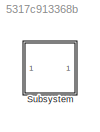
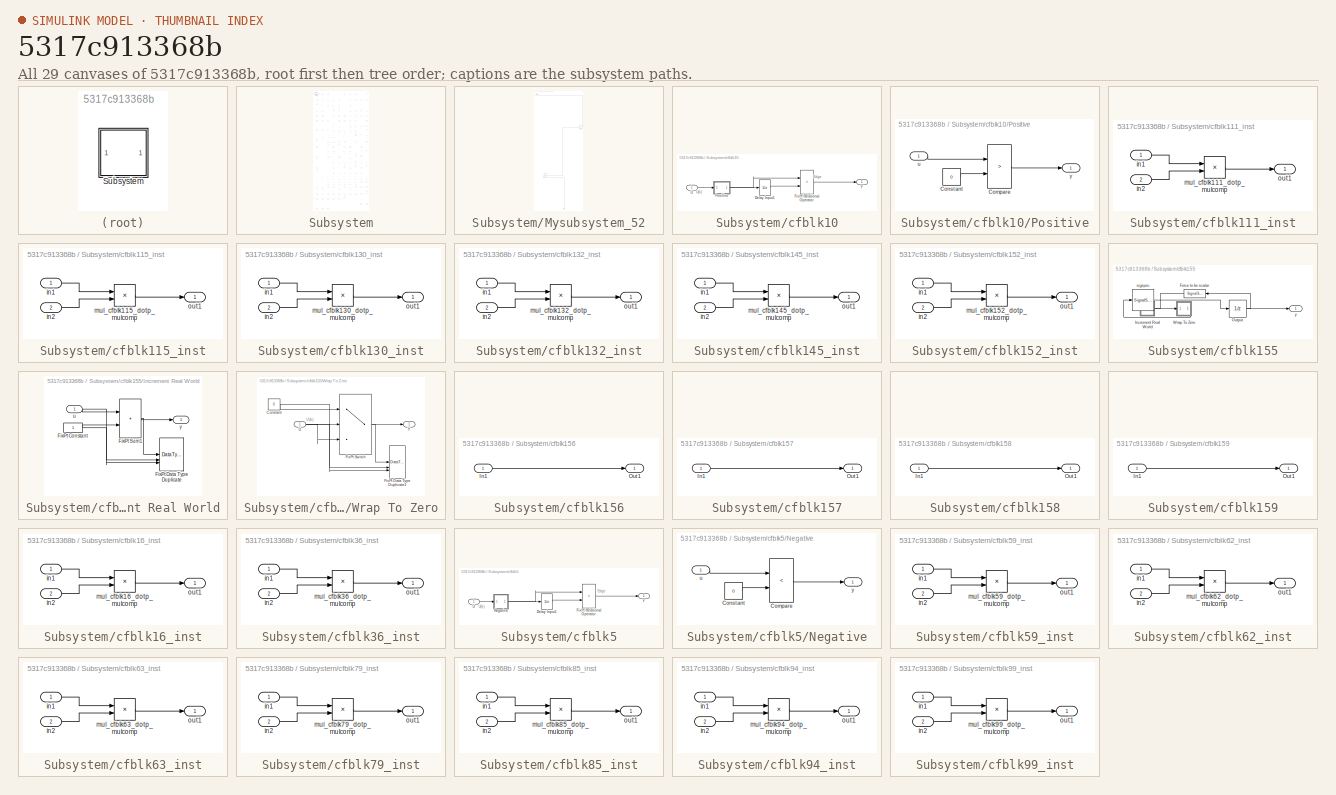
[diagram: thumbnail index - all 29 canvases of the model, root first then tree order]
MODEL slx_5317c913368b
KIND model
CONFIG AbsTol = auto
CONFIG EnableMultiTasking = off
CONFIG FixedStep = auto
CONFIG MaxStep = auto
CONFIG MinStep = auto
CONFIG RelTol = 1e-3
CONFIG SampleTimeConstraint = Unconstrained
CONFIG SolverName = VariableStepAuto
CONFIG StartTime = 0.0
CONFIG StopTime = 10.0
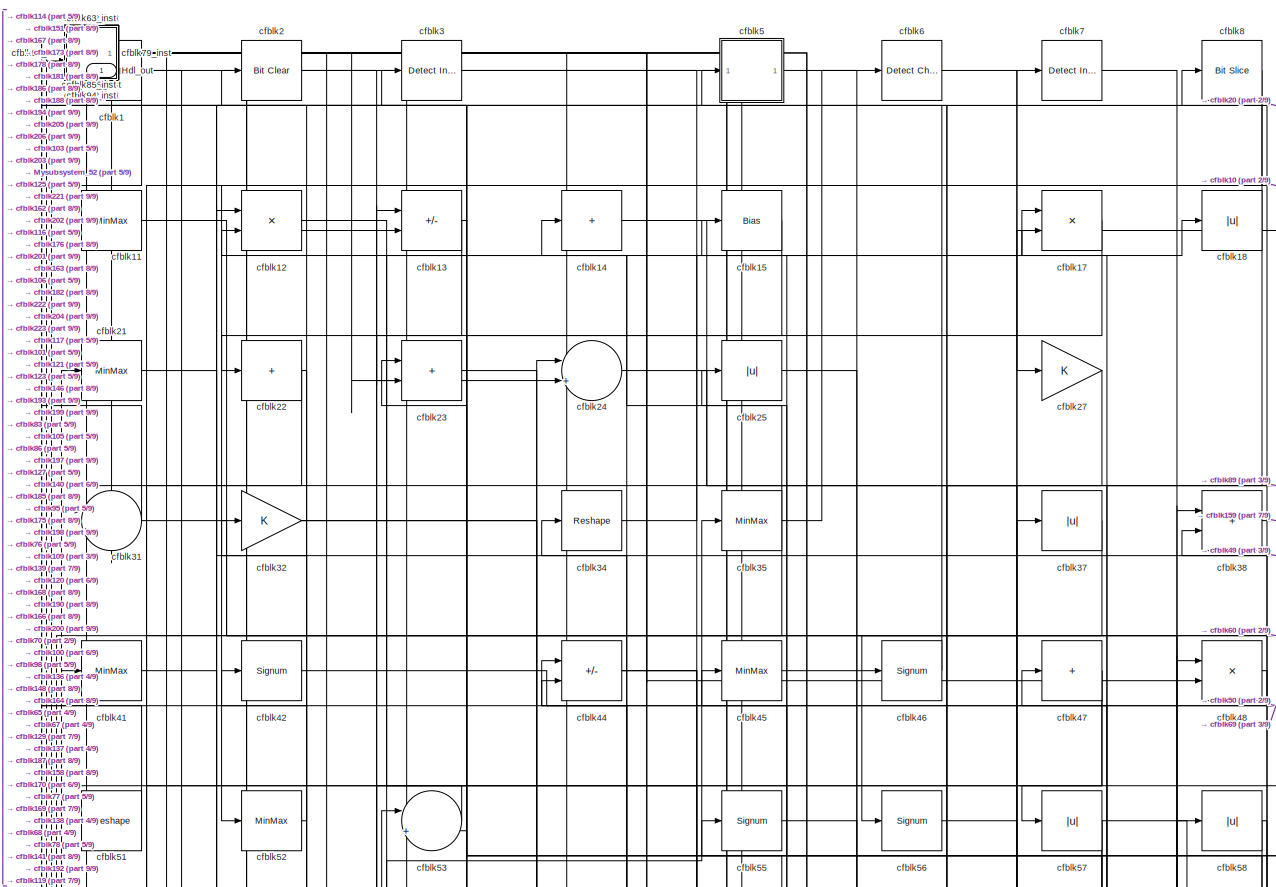
[diagram: Subsystem - part 1/9, full width, top band]
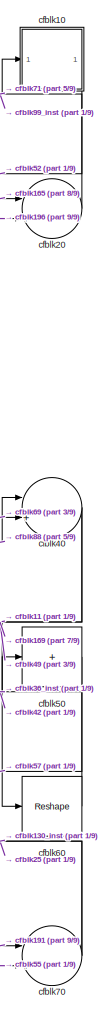
[diagram: Subsystem - part 2/9, top right region]
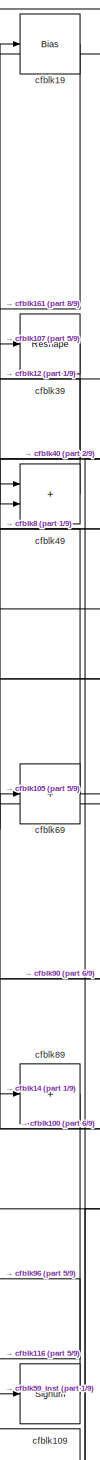
[diagram: Subsystem - part 3/9, top right region]
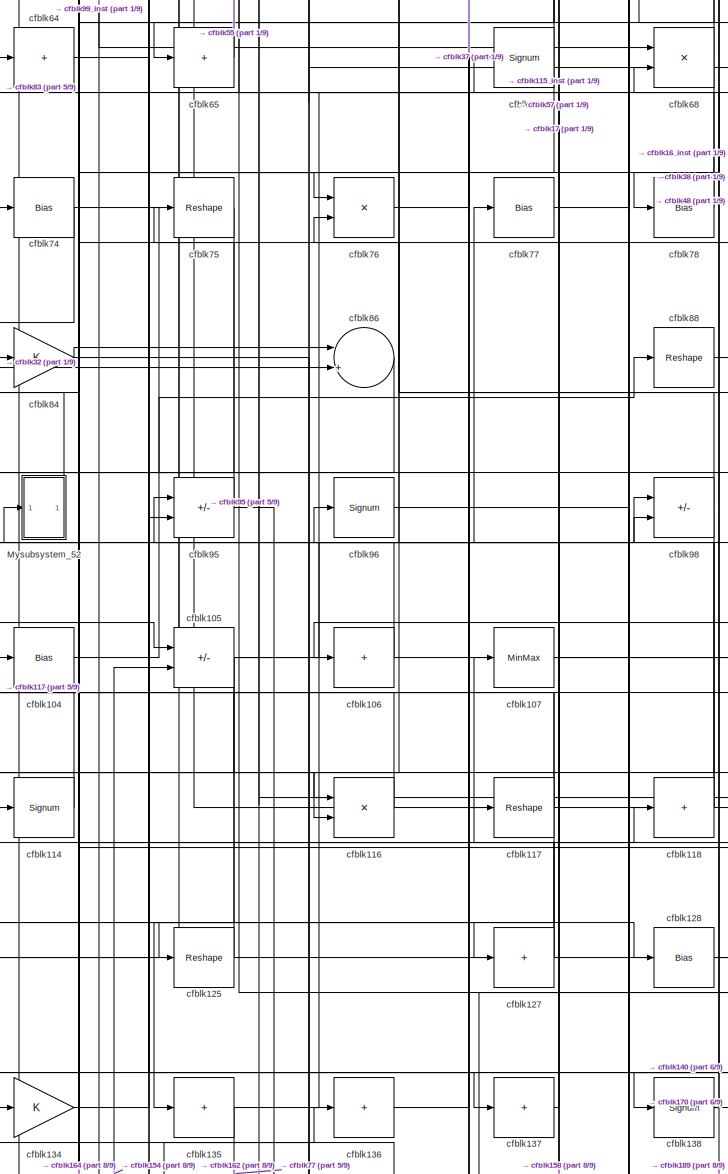
[diagram: Subsystem - part 4/9, central region]
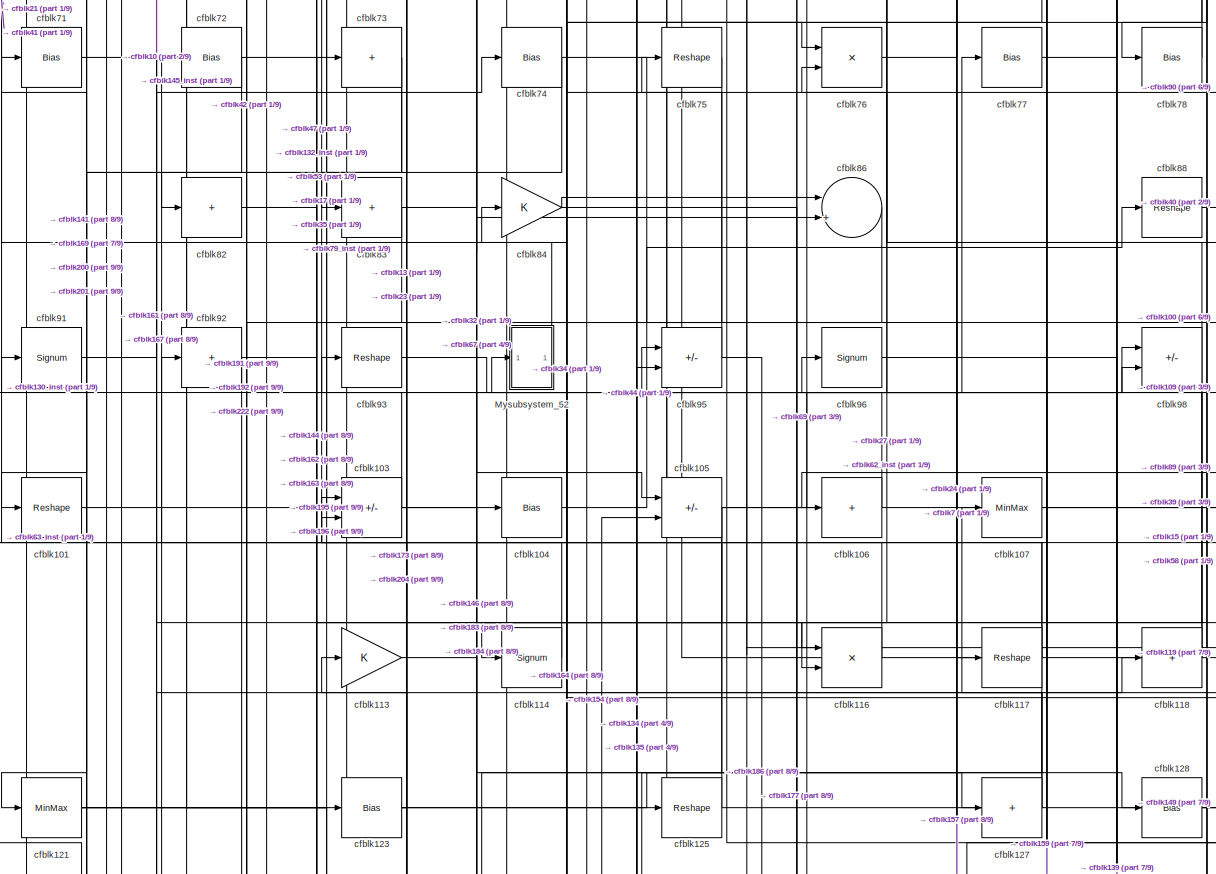
[diagram: Subsystem - part 5/9, full width, middle band]
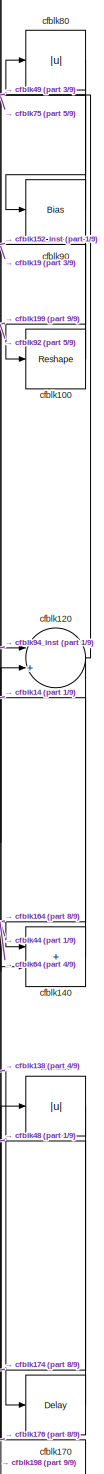
[diagram: Subsystem - part 6/9, middle right region]
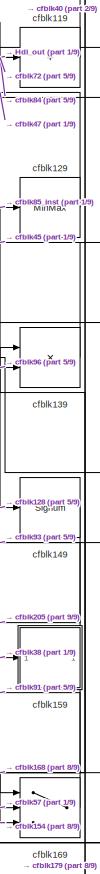
[diagram: Subsystem - part 7/9, middle right region]
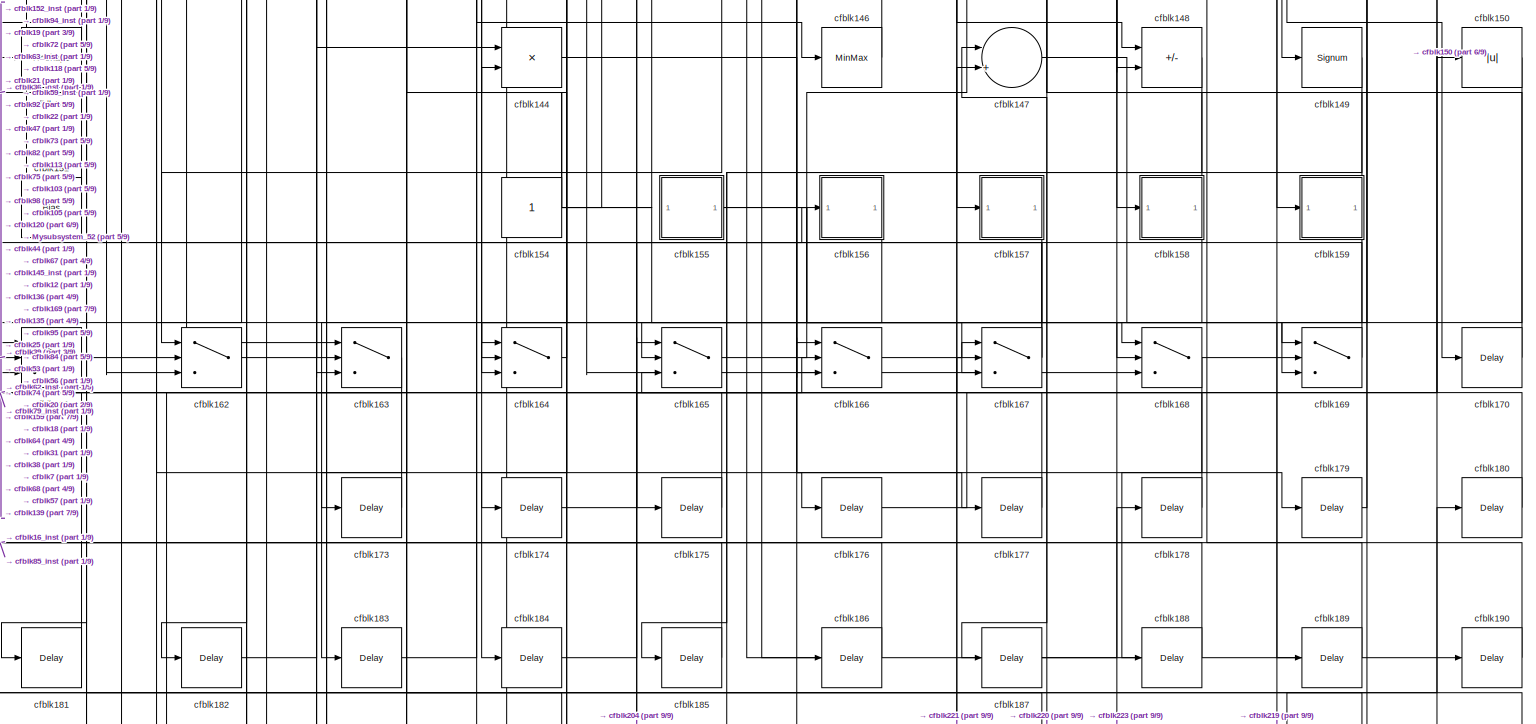
[diagram: Subsystem - part 8/9, full width, bottom band]
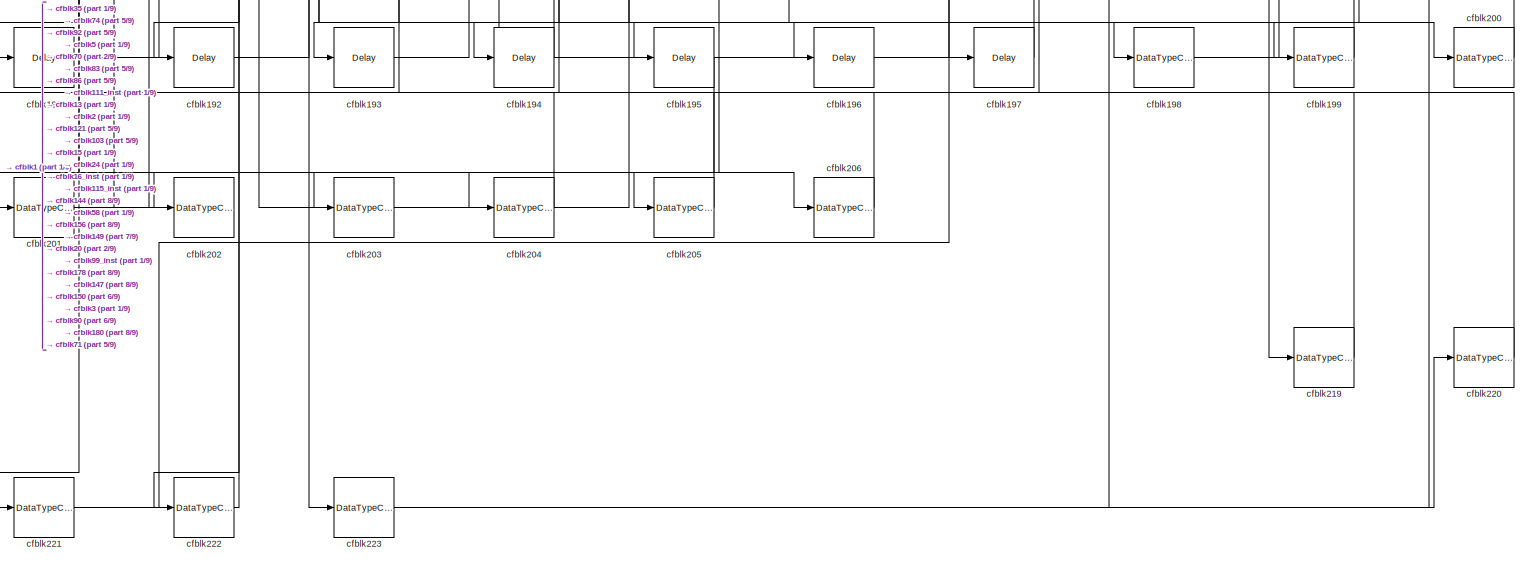
[diagram: Subsystem - part 9/9, full width, bottom band]
BLOCK [SubSystem] Subsystem
BLOCK [Outport] Subsystem/Hdl_out
  OutDataTypeStr = uint8
  SampleTime = 1
BLOCK [SubSystem] Subsystem/Mysubsystem_52
BLOCK [Inport] Subsystem/Mysubsystem_52/In1
  OutDataTypeStr = uint8
  PortDimensions = 1
  SampleTime = 1
BLOCK [Outport] Subsystem/Mysubsystem_52/Out1
  SampleTime = 1
BLOCK [Gain] Subsystem/Mysubsystem_52/cfblk122
BLOCK [Abs] Subsystem/Mysubsystem_52/cfblk66
  SaturateOnIntegerOverflow = off
BLOCK [Reference] Subsystem/cfblk1  REF=simulink/Logic and Bit
Operations/Bit Set
  LibrarySourceBlock = hdlsllib/Logic and Bit\nOperations/Bit Set
  SourceBlock = simulink/Logic and Bit\nOperations/Bit Set
  SourceType = Bit Set
BLOCK [SubSystem] Subsystem/cfblk10
BLOCK [UnitDelay] Subsystem/cfblk10/Delay Input1
  Description = Store in Global RAM
  DisableCoverage = on
  HasFrameUpgradeWarning = on
  InitialCondition = vinit
  SampleTime = -1
BLOCK [RelationalOperator] Subsystem/cfblk10/FixPt Relational Operator
  InputSameDT = off
  Operator = >
  OutDataTypeStr = fixdt(0, 8)
  ZeroCross = off
BLOCK [SubSystem] Subsystem/cfblk10/Positive
BLOCK [RelationalOperator] Subsystem/cfblk10/Positive/Compare
  Operator = >
  OutDataTypeStr = boolean
  ZeroCross = off
BLOCK [Constant] Subsystem/cfblk10/Positive/Constant
  DisableCoverage = on
  OutDataTypeStr = Inherit: Inherit via back propagation
  PreserveConstantTs = on
  SampleTime = -1
  Value = 0
BLOCK [Inport] Subsystem/cfblk10/Positive/u
  OutDataTypeStr = uint8
  SampleTime = 1
BLOCK [Outport] Subsystem/cfblk10/Positive/y
  SampleTime = 1
BLOCK [Inport] Subsystem/cfblk10/U
  OutDataTypeStr = uint8
  SampleTime = 1
BLOCK [Outport] Subsystem/cfblk10/Y
  SampleTime = 1
BLOCK [Reshape] Subsystem/cfblk100
BLOCK [Reshape] Subsystem/cfblk101
BLOCK [Sum] Subsystem/cfblk103
  IconShape = rectangular
  Inputs = +-
  OutDataTypeStr = uint8
BLOCK [Bias] Subsystem/cfblk104
  Bias = 0.0
  SaturateOnIntegerOverflow = off
BLOCK [Sum] Subsystem/cfblk105
  IconShape = rectangular
  Inputs = +-
  OutDataTypeStr = uint8
BLOCK [Sum] Subsystem/cfblk106
  IconShape = rectangular
  Inputs = +
  OutDataTypeStr = uint8
BLOCK [MinMax] Subsystem/cfblk107
  OutDataTypeStr = uint8
BLOCK [Signum] Subsystem/cfblk109
BLOCK [MinMax] Subsystem/cfblk11
  OutDataTypeStr = uint8
BLOCK [SubSystem] Subsystem/cfblk111_inst
BLOCK [Inport] Subsystem/cfblk111_inst/in1
  OutDataTypeStr = uint8
  SampleTime = 1
BLOCK [Inport] Subsystem/cfblk111_inst/in2
  OutDataTypeStr = uint8
  Port = 2
  SampleTime = 1
BLOCK [Product] Subsystem/cfblk111_inst/mul_cfblk111_dotp_mulcomp
  Inputs = **
  OutDataTypeStr = uint8
  SampleTime = 1
BLOCK [Outport] Subsystem/cfblk111_inst/out1
  OutDataTypeStr = uint8
  SampleTime = 1
BLOCK [Gain] Subsystem/cfblk113
  OutDataTypeStr = uint8
BLOCK [Signum] Subsystem/cfblk114
BLOCK [SubSystem] Subsystem/cfblk115_inst
BLOCK [Inport] Subsystem/cfblk115_inst/in1
  OutDataTypeStr = uint8
  SampleTime = 1
BLOCK [Inport] Subsystem/cfblk115_inst/in2
  OutDataTypeStr = uint8
  Port = 2
  SampleTime = 1
BLOCK [Product] Subsystem/cfblk115_inst/mul_cfblk115_dotp_mulcomp
  Inputs = **
  OutDataTypeStr = uint8
  SampleTime = 1
BLOCK [Outport] Subsystem/cfblk115_inst/out1
  OutDataTypeStr = uint8
  SampleTime = 1
BLOCK [Product] Subsystem/cfblk116
  Inputs = */
  OutDataTypeStr = uint8
  RndMeth = Zero
  SaturateOnIntegerOverflow = on
BLOCK [Reshape] Subsystem/cfblk117
BLOCK [Sum] Subsystem/cfblk118
  IconShape = rectangular
  Inputs = +
  OutDataTypeStr = uint8
BLOCK [Sum] Subsystem/cfblk119
  IconShape = rectangular
  Inputs = +
  OutDataTypeStr = uint8
BLOCK [Product] Subsystem/cfblk12
  Inputs = */
  OutDataTypeStr = uint8
  RndMeth = Zero
  SaturateOnIntegerOverflow = on
BLOCK [Sum] Subsystem/cfblk120
  Inputs = |++
  OutDataTypeStr = uint8
BLOCK [MinMax] Subsystem/cfblk121
  OutDataTypeStr = uint8
BLOCK [Bias] Subsystem/cfblk123
  Bias = 0.0
  SaturateOnIntegerOverflow = off
BLOCK [Reshape] Subsystem/cfblk125
BLOCK [Sum] Subsystem/cfblk127
  IconShape = rectangular
  Inputs = +
  OutDataTypeStr = uint8
BLOCK [Bias] Subsystem/cfblk128
  Bias = 0.0
  SaturateOnIntegerOverflow = off
BLOCK [MinMax] Subsystem/cfblk129
  OutDataTypeStr = uint8
BLOCK [Sum] Subsystem/cfblk13
  IconShape = rectangular
  Inputs = +-
  OutDataTypeStr = uint8
BLOCK [SubSystem] Subsystem/cfblk130_inst
BLOCK [Inport] Subsystem/cfblk130_inst/in1
  OutDataTypeStr = uint8
  SampleTime = 1
BLOCK [Inport] Subsystem/cfblk130_inst/in2
  OutDataTypeStr = uint8
  Port = 2
  SampleTime = 1
BLOCK [Product] Subsystem/cfblk130_inst/mul_cfblk130_dotp_mulcomp
  Inputs = **
  OutDataTypeStr = uint8
  SampleTime = 1
BLOCK [Outport] Subsystem/cfblk130_inst/out1
  OutDataTypeStr = uint8
  SampleTime = 1
BLOCK [SubSystem] Subsystem/cfblk132_inst
BLOCK [Inport] Subsystem/cfblk132_inst/in1
  OutDataTypeStr = uint8
  SampleTime = 1
BLOCK [Inport] Subsystem/cfblk132_inst/in2
  OutDataTypeStr = uint8
  Port = 2
  SampleTime = 1
BLOCK [Product] Subsystem/cfblk132_inst/mul_cfblk132_dotp_mulcomp
  Inputs = **
  OutDataTypeStr = uint8
  SampleTime = 1
BLOCK [Outport] Subsystem/cfblk132_inst/out1
  OutDataTypeStr = uint8
  SampleTime = 1
BLOCK [Gain] Subsystem/cfblk134
  OutDataTypeStr = uint8
BLOCK [Sum] Subsystem/cfblk135
  IconShape = rectangular
  Inputs = +
  OutDataTypeStr = uint8
BLOCK [Sum] Subsystem/cfblk136
  IconShape = rectangular
  Inputs = +
  OutDataTypeStr = uint8
BLOCK [Sum] Subsystem/cfblk137
  IconShape = rectangular
  Inputs = +
  OutDataTypeStr = uint8
BLOCK [Signum] Subsystem/cfblk138
BLOCK [Product] Subsystem/cfblk139
  Inputs = */
  OutDataTypeStr = uint8
  RndMeth = Zero
  SaturateOnIntegerOverflow = on
BLOCK [Sum] Subsystem/cfblk14
  IconShape = rectangular
  Inputs = +
  OutDataTypeStr = uint8
BLOCK [Sum] Subsystem/cfblk140
  IconShape = rectangular
  OutDataTypeStr = uint8
BLOCK [Reshape] Subsystem/cfblk141
BLOCK [Product] Subsystem/cfblk144
  Inputs = */
  OutDataTypeStr = uint8
  RndMeth = Zero
  SaturateOnIntegerOverflow = on
BLOCK [SubSystem] Subsystem/cfblk145_inst
BLOCK [Inport] Subsystem/cfblk145_inst/in1
  OutDataTypeStr = uint8
  SampleTime = 1
BLOCK [Inport] Subsystem/cfblk145_inst/in2
  OutDataTypeStr = uint8
  Port = 2
  SampleTime = 1
BLOCK [Product] Subsystem/cfblk145_inst/mul_cfblk145_dotp_mulcomp
  Inputs = **
  OutDataTypeStr = uint8
  SampleTime = 1
BLOCK [Outport] Subsystem/cfblk145_inst/out1
  OutDataTypeStr = uint8
  SampleTime = 1
BLOCK [MinMax] Subsystem/cfblk146
  OutDataTypeStr = uint8
BLOCK [Sum] Subsystem/cfblk147
  Inputs = |++
  OutDataTypeStr = uint8
BLOCK [Sum] Subsystem/cfblk148
  IconShape = rectangular
  Inputs = +-
  OutDataTypeStr = uint8
BLOCK [Signum] Subsystem/cfblk149
BLOCK [Bias] Subsystem/cfblk15
  Bias = 0.0
  SaturateOnIntegerOverflow = off
BLOCK [Abs] Subsystem/cfblk150
  OutDataTypeStr = uint8
  SaturateOnIntegerOverflow = off
BLOCK [Bias] Subsystem/cfblk151
  Bias = 0.0
  SaturateOnIntegerOverflow = off
BLOCK [SubSystem] Subsystem/cfblk152_inst
BLOCK [Inport] Subsystem/cfblk152_inst/in1
  OutDataTypeStr = uint8
  SampleTime = 1
BLOCK [Inport] Subsystem/cfblk152_inst/in2
  OutDataTypeStr = uint8
  Port = 2
  SampleTime = 1
BLOCK [Product] Subsystem/cfblk152_inst/mul_cfblk152_dotp_mulcomp
  Inputs = **
  OutDataTypeStr = uint8
  SampleTime = 1
BLOCK [Outport] Subsystem/cfblk152_inst/out1
  OutDataTypeStr = uint8
  SampleTime = 1
BLOCK [Constant] Subsystem/cfblk154
  OutDataTypeStr = uint8
  SampleTime = -1
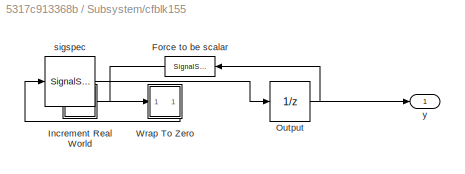
BLOCK [SubSystem] Subsystem/cfblk155
BLOCK [SignalSpecification] Subsystem/cfblk155/Force to be scalar
  Dimensions = 1
  DisableCoverage = on
BLOCK [SubSystem] Subsystem/cfblk155/Increment Real World
BLOCK [Constant] Subsystem/cfblk155/Increment Real World/FixPt Constant
  DisableCoverage = on
  OutDataTypeStr = Inherit: Inherit via back propagation
  SampleTime = -1
BLOCK [DataTypeDuplicate] Subsystem/cfblk155/Increment Real World/FixPt Data Type Duplicate
  DisableCoverage = on
  NumInputPorts = 3
BLOCK [Sum] Subsystem/cfblk155/Increment Real World/FixPt Sum1
  IconShape = rectangular
  InputSameDT = on
  LockScale = on
  OutDataTypeStr = Inherit: Inherit via back propagation
BLOCK [Inport] Subsystem/cfblk155/Increment Real World/u
  OutDataTypeStr = uint16
  SampleTime = 1
BLOCK [Outport] Subsystem/cfblk155/Increment Real World/y
  SampleTime = 1
BLOCK [UnitDelay] Subsystem/cfblk155/Output
  HasFrameUpgradeWarning = on
  InitialCondition = 0.0
  SampleTime = tsamp
BLOCK [SubSystem] Subsystem/cfblk155/Wrap To Zero
BLOCK [Constant] Subsystem/cfblk155/Wrap To Zero/Constant
  DisableCoverage = on
  OutDataTypeStr = Inherit: Inherit via back propagation
  SampleTime = -1
  Value = 0
BLOCK [DataTypeDuplicate] Subsystem/cfblk155/Wrap To Zero/FixPt Data Type Duplicate1
  DisableCoverage = on
  NumInputPorts = 3
BLOCK [Switch] Subsystem/cfblk155/Wrap To Zero/FixPt Switch
  Criteria = u2 > Threshold
  InputSameDT = off
  OutDataTypeStr = Inherit: Inherit via back propagation
  SaturateOnIntegerOverflow = off
  Threshold = Threshold
  ZeroCross = off
BLOCK [Inport] Subsystem/cfblk155/Wrap To Zero/U
  OutDataTypeStr = uint16
  SampleTime = 1
BLOCK [Outport] Subsystem/cfblk155/Wrap To Zero/Y
  SampleTime = 1
BLOCK [SignalSpecification] Subsystem/cfblk155/sigspec
  Dimensions = 1
  OutDataTypeStr = uint16
BLOCK [Outport] Subsystem/cfblk155/y
  SampleTime = 1
BLOCK [SubSystem] Subsystem/cfblk156
BLOCK [Inport] Subsystem/cfblk156/In1
  OutDataTypeStr = uint8
  PortDimensions = 1
  SampleTime = 1
BLOCK [Outport] Subsystem/cfblk156/Out1
  SampleTime = 1
BLOCK [SubSystem] Subsystem/cfblk157
BLOCK [Inport] Subsystem/cfblk157/In1
  OutDataTypeStr = uint8
  PortDimensions = 1
  SampleTime = 1
BLOCK [Outport] Subsystem/cfblk157/Out1
  SampleTime = 1
BLOCK [SubSystem] Subsystem/cfblk158
BLOCK [Inport] Subsystem/cfblk158/In1
  OutDataTypeStr = uint8
  PortDimensions = 1
  SampleTime = 1
BLOCK [Outport] Subsystem/cfblk158/Out1
  SampleTime = 1
BLOCK [SubSystem] Subsystem/cfblk159
BLOCK [Inport] Subsystem/cfblk159/In1
  OutDataTypeStr = uint8
  PortDimensions = 1
  SampleTime = 1
BLOCK [Outport] Subsystem/cfblk159/Out1
  SampleTime = 1
BLOCK [Switch] Subsystem/cfblk161
  InputSameDT = off
  OutDataTypeStr = uint8
  SaturateOnIntegerOverflow = off
BLOCK [Switch] Subsystem/cfblk162
  InputSameDT = off
  OutDataTypeStr = uint8
  SaturateOnIntegerOverflow = off
BLOCK [Switch] Subsystem/cfblk163
  InputSameDT = off
  OutDataTypeStr = uint8
  SaturateOnIntegerOverflow = off
BLOCK [Switch] Subsystem/cfblk164
  InputSameDT = off
  OutDataTypeStr = uint8
  SaturateOnIntegerOverflow = off
BLOCK [Switch] Subsystem/cfblk165
  InputSameDT = off
  OutDataTypeStr = uint8
  SaturateOnIntegerOverflow = off
BLOCK [Switch] Subsystem/cfblk166
  InputSameDT = off
  OutDataTypeStr = uint8
  SaturateOnIntegerOverflow = off
BLOCK [Switch] Subsystem/cfblk167
  InputSameDT = off
  OutDataTypeStr = uint8
  SaturateOnIntegerOverflow = off
BLOCK [Switch] Subsystem/cfblk168
  InputSameDT = off
  OutDataTypeStr = uint8
  SaturateOnIntegerOverflow = off
BLOCK [Switch] Subsystem/cfblk169
  InputSameDT = off
  OutDataTypeStr = uint8
  SaturateOnIntegerOverflow = off
BLOCK [SubSystem] Subsystem/cfblk16_inst
BLOCK [Inport] Subsystem/cfblk16_inst/in1
  OutDataTypeStr = uint8
  SampleTime = 1
BLOCK [Inport] Subsystem/cfblk16_inst/in2
  OutDataTypeStr = uint8
  Port = 2
  SampleTime = 1
BLOCK [Product] Subsystem/cfblk16_inst/mul_cfblk16_dotp_mulcomp
  Inputs = **
  OutDataTypeStr = uint8
  SampleTime = 1
BLOCK [Outport] Subsystem/cfblk16_inst/out1
  OutDataTypeStr = uint8
  SampleTime = 1
BLOCK [Product] Subsystem/cfblk17
  Inputs = */
  OutDataTypeStr = uint8
  RndMeth = Zero
  SaturateOnIntegerOverflow = on
BLOCK [Delay] Subsystem/cfblk170
  InputPortMap = u0
  SampleTime = 1
BLOCK [Delay] Subsystem/cfblk173
  InputPortMap = u0
  SampleTime = 1
BLOCK [Delay] Subsystem/cfblk174
  InputPortMap = u0
  SampleTime = 1
BLOCK [Delay] Subsystem/cfblk175
  InputPortMap = u0
  SampleTime = 1
BLOCK [Delay] Subsystem/cfblk176
  InputPortMap = u0
  SampleTime = 1
BLOCK [Delay] Subsystem/cfblk177
  InputPortMap = u0
  SampleTime = 1
BLOCK [Delay] Subsystem/cfblk178
  InputPortMap = u0
  SampleTime = 1
BLOCK [Delay] Subsystem/cfblk179
  InputPortMap = u0
  SampleTime = 1
BLOCK [Abs] Subsystem/cfblk18
  OutDataTypeStr = uint8
  SaturateOnIntegerOverflow = off
BLOCK [Delay] Subsystem/cfblk180
  InputPortMap = u0
  SampleTime = 1
BLOCK [Delay] Subsystem/cfblk181
  InputPortMap = u0
  SampleTime = 1
BLOCK [Delay] Subsystem/cfblk182
  InputPortMap = u0
  SampleTime = 1
BLOCK [Delay] Subsystem/cfblk183
  InputPortMap = u0
  SampleTime = 1
BLOCK [Delay] Subsystem/cfblk184
  InputPortMap = u0
  SampleTime = 1
BLOCK [Delay] Subsystem/cfblk185
  InputPortMap = u0
  SampleTime = 1
BLOCK [Delay] Subsystem/cfblk186
  InputPortMap = u0
  SampleTime = 1
BLOCK [Delay] Subsystem/cfblk187
  InputPortMap = u0
  SampleTime = 1
BLOCK [Delay] Subsystem/cfblk188
  InputPortMap = u0
  SampleTime = 1
BLOCK [Delay] Subsystem/cfblk189
  InputPortMap = u0
  SampleTime = 1
BLOCK [Bias] Subsystem/cfblk19
  Bias = 0.0
  SaturateOnIntegerOverflow = off
BLOCK [Delay] Subsystem/cfblk190
  InputPortMap = u0
  SampleTime = 1
BLOCK [Delay] Subsystem/cfblk191
  InputPortMap = u0
  SampleTime = 1
BLOCK [Delay] Subsystem/cfblk192
  InputPortMap = u0
  SampleTime = 1
BLOCK [Delay] Subsystem/cfblk193
  InputPortMap = u0
  SampleTime = 1
BLOCK [Delay] Subsystem/cfblk194
  InputPortMap = u0
  SampleTime = 1
BLOCK [Delay] Subsystem/cfblk195
  InputPortMap = u0
  SampleTime = 1
BLOCK [Delay] Subsystem/cfblk196
  InputPortMap = u0
  SampleTime = 1
BLOCK [Delay] Subsystem/cfblk197
  InputPortMap = u0
  SampleTime = 1
BLOCK [DataTypeConversion] Subsystem/cfblk198
  OutDataTypeStr = uint8
  RndMeth = Floor
  SaturateOnIntegerOverflow = off
BLOCK [DataTypeConversion] Subsystem/cfblk199
  OutDataTypeStr = uint8
  RndMeth = Floor
  SaturateOnIntegerOverflow = off
BLOCK [Reference] Subsystem/cfblk2  REF=simulink/Logic and Bit
Operations/Bit Clear
  LibrarySourceBlock = hdlsllib/Logic and Bit\nOperations/Bit Clear
  SourceBlock = simulink/Logic and Bit\nOperations/Bit Clear
  SourceType = Bit Clear
BLOCK [Sum] Subsystem/cfblk20
  Inputs = |++
  OutDataTypeStr = uint8
BLOCK [DataTypeConversion] Subsystem/cfblk200
  OutDataTypeStr = uint8
  RndMeth = Floor
  SaturateOnIntegerOverflow = off
BLOCK [DataTypeConversion] Subsystem/cfblk201
  OutDataTypeStr = uint8
  RndMeth = Floor
  SaturateOnIntegerOverflow = off
BLOCK [DataTypeConversion] Subsystem/cfblk202
  OutDataTypeStr = uint8
  RndMeth = Floor
  SaturateOnIntegerOverflow = off
BLOCK [DataTypeConversion] Subsystem/cfblk203
  OutDataTypeStr = uint8
  RndMeth = Floor
  SaturateOnIntegerOverflow = off
BLOCK [DataTypeConversion] Subsystem/cfblk204
  OutDataTypeStr = uint8
  RndMeth = Floor
  SaturateOnIntegerOverflow = off
BLOCK [DataTypeConversion] Subsystem/cfblk205
  OutDataTypeStr = uint8
  RndMeth = Floor
  SaturateOnIntegerOverflow = off
BLOCK [DataTypeConversion] Subsystem/cfblk206
  OutDataTypeStr = uint8
  RndMeth = Floor
  SaturateOnIntegerOverflow = off
BLOCK [MinMax] Subsystem/cfblk21
  OutDataTypeStr = uint8
BLOCK [DataTypeConversion] Subsystem/cfblk219
  OutDataTypeStr = uint8
  RndMeth = Floor
  SaturateOnIntegerOverflow = off
BLOCK [Sum] Subsystem/cfblk22
  IconShape = rectangular
  Inputs = +
  OutDataTypeStr = uint8
BLOCK [DataTypeConversion] Subsystem/cfblk220
  OutDataTypeStr = uint8
  RndMeth = Floor
  SaturateOnIntegerOverflow = off
BLOCK [DataTypeConversion] Subsystem/cfblk221
  OutDataTypeStr = uint8
  RndMeth = Floor
  SaturateOnIntegerOverflow = off
BLOCK [DataTypeConversion] Subsystem/cfblk222
  OutDataTypeStr = uint8
  RndMeth = Floor
  SaturateOnIntegerOverflow = off
BLOCK [DataTypeConversion] Subsystem/cfblk223
  OutDataTypeStr = uint8
  RndMeth = Floor
  SaturateOnIntegerOverflow = off
BLOCK [Sum] Subsystem/cfblk23
  IconShape = rectangular
  OutDataTypeStr = uint8
BLOCK [Sum] Subsystem/cfblk24
  Inputs = |++
  OutDataTypeStr = uint8
BLOCK [Abs] Subsystem/cfblk25
  OutDataTypeStr = uint8
  SaturateOnIntegerOverflow = off
BLOCK [Gain] Subsystem/cfblk27
  OutDataTypeStr = uint8
BLOCK [Reference] Subsystem/cfblk3  REF=simulink/Logic and Bit
Operations/Detect
Increase
  LibrarySourceBlock = hdlsllib/Logic and Bit\nOperations/Detect\nIncrease
  SourceBlock = simulink/Logic and Bit\nOperations/Detect\nIncrease
  SourceType = Detect Increase
BLOCK [Sum] Subsystem/cfblk31
  Inputs = |++
  OutDataTypeStr = uint8
BLOCK [Gain] Subsystem/cfblk32
  OutDataTypeStr = uint8
BLOCK [Reshape] Subsystem/cfblk34
BLOCK [MinMax] Subsystem/cfblk35
  OutDataTypeStr = uint8
BLOCK [SubSystem] Subsystem/cfblk36_inst
BLOCK [Inport] Subsystem/cfblk36_inst/in1
  OutDataTypeStr = uint8
  SampleTime = 1
BLOCK [Inport] Subsystem/cfblk36_inst/in2
  OutDataTypeStr = uint8
  Port = 2
  SampleTime = 1
BLOCK [Product] Subsystem/cfblk36_inst/mul_cfblk36_dotp_mulcomp
  Inputs = **
  OutDataTypeStr = uint8
  SampleTime = 1
BLOCK [Outport] Subsystem/cfblk36_inst/out1
  OutDataTypeStr = uint8
  SampleTime = 1
BLOCK [Abs] Subsystem/cfblk37
  OutDataTypeStr = uint8
  SaturateOnIntegerOverflow = off
BLOCK [Sum] Subsystem/cfblk38
  IconShape = rectangular
  OutDataTypeStr = uint8
BLOCK [Reshape] Subsystem/cfblk39
BLOCK [Sum] Subsystem/cfblk40
  Inputs = |++
  OutDataTypeStr = uint8
BLOCK [MinMax] Subsystem/cfblk41
  OutDataTypeStr = uint8
BLOCK [Signum] Subsystem/cfblk42
BLOCK [Sum] Subsystem/cfblk44
  IconShape = rectangular
  Inputs = +-
  OutDataTypeStr = uint8
BLOCK [MinMax] Subsystem/cfblk45
  OutDataTypeStr = uint8
BLOCK [Signum] Subsystem/cfblk46
BLOCK [Sum] Subsystem/cfblk47
  IconShape = rectangular
  Inputs = +
  OutDataTypeStr = uint8
BLOCK [Product] Subsystem/cfblk48
  Inputs = */
  OutDataTypeStr = uint8
  RndMeth = Zero
  SaturateOnIntegerOverflow = on
BLOCK [Sum] Subsystem/cfblk49
  IconShape = rectangular
  OutDataTypeStr = uint8
BLOCK [SubSystem] Subsystem/cfblk5
BLOCK [UnitDelay] Subsystem/cfblk5/Delay Input1
  Description = Store in Global RAM
  DisableCoverage = on
  HasFrameUpgradeWarning = on
  InitialCondition = vinit
  SampleTime = -1
BLOCK [RelationalOperator] Subsystem/cfblk5/FixPt Relational Operator
  InputSameDT = off
  Operator = >
  OutDataTypeStr = fixdt(0, 8)
  ZeroCross = off
BLOCK [SubSystem] Subsystem/cfblk5/Negative
BLOCK [RelationalOperator] Subsystem/cfblk5/Negative/Compare
  Operator = <
  OutDataTypeStr = boolean
  ZeroCross = off
BLOCK [Constant] Subsystem/cfblk5/Negative/Constant
  DisableCoverage = on
  OutDataTypeStr = Inherit: Inherit via back propagation
  PreserveConstantTs = on
  SampleTime = -1
  Value = 0
BLOCK [Inport] Subsystem/cfblk5/Negative/u
  OutDataTypeStr = uint8
  SampleTime = 1
BLOCK [Outport] Subsystem/cfblk5/Negative/y
  SampleTime = 1
BLOCK [Inport] Subsystem/cfblk5/U
  OutDataTypeStr = uint8
  SampleTime = 1
BLOCK [Outport] Subsystem/cfblk5/Y
  SampleTime = 1
BLOCK [Sum] Subsystem/cfblk50
  IconShape = rectangular
  Inputs = +
  OutDataTypeStr = uint8
BLOCK [Reshape] Subsystem/cfblk51
BLOCK [MinMax] Subsystem/cfblk52
  OutDataTypeStr = uint8
BLOCK [Sum] Subsystem/cfblk53
  Inputs = |++
  OutDataTypeStr = uint8
BLOCK [Signum] Subsystem/cfblk55
BLOCK [Signum] Subsystem/cfblk56
BLOCK [Abs] Subsystem/cfblk57
  OutDataTypeStr = uint8
  SaturateOnIntegerOverflow = off
BLOCK [Abs] Subsystem/cfblk58
  OutDataTypeStr = uint8
  SaturateOnIntegerOverflow = off
BLOCK [SubSystem] Subsystem/cfblk59_inst
BLOCK [Inport] Subsystem/cfblk59_inst/in1
  OutDataTypeStr = uint8
  SampleTime = 1
BLOCK [Inport] Subsystem/cfblk59_inst/in2
  OutDataTypeStr = uint8
  Port = 2
  SampleTime = 1
BLOCK [Product] Subsystem/cfblk59_inst/mul_cfblk59_dotp_mulcomp
  Inputs = **
  OutDataTypeStr = uint8
  SampleTime = 1
BLOCK [Outport] Subsystem/cfblk59_inst/out1
  OutDataTypeStr = uint8
  SampleTime = 1
BLOCK [Reference] Subsystem/cfblk6  REF=simulink/Logic and Bit
Operations/Detect
Change
  LibrarySourceBlock = hdlsllib/Logic and Bit\nOperations/Detect\nChange
  SourceBlock = simulink/Logic and Bit\nOperations/Detect\nChange
  SourceType = Detect Change
BLOCK [Reshape] Subsystem/cfblk60
BLOCK [SubSystem] Subsystem/cfblk62_inst
BLOCK [Inport] Subsystem/cfblk62_inst/in1
  OutDataTypeStr = uint8
  SampleTime = 1
BLOCK [Inport] Subsystem/cfblk62_inst/in2
  OutDataTypeStr = uint8
  Port = 2
  SampleTime = 1
BLOCK [Product] Subsystem/cfblk62_inst/mul_cfblk62_dotp_mulcomp
  Inputs = **
  OutDataTypeStr = uint8
  SampleTime = 1
BLOCK [Outport] Subsystem/cfblk62_inst/out1
  OutDataTypeStr = uint8
  SampleTime = 1
BLOCK [SubSystem] Subsystem/cfblk63_inst
BLOCK [Inport] Subsystem/cfblk63_inst/in1
  OutDataTypeStr = uint8
  SampleTime = 1
BLOCK [Inport] Subsystem/cfblk63_inst/in2
  OutDataTypeStr = uint8
  Port = 2
  SampleTime = 1
BLOCK [Product] Subsystem/cfblk63_inst/mul_cfblk63_dotp_mulcomp
  Inputs = **
  OutDataTypeStr = uint8
  SampleTime = 1
BLOCK [Outport] Subsystem/cfblk63_inst/out1
  OutDataTypeStr = uint8
  SampleTime = 1
BLOCK [Sum] Subsystem/cfblk64
  IconShape = rectangular
  Inputs = +
  OutDataTypeStr = uint8
BLOCK [Sum] Subsystem/cfblk65
  IconShape = rectangular
  Inputs = +
  OutDataTypeStr = uint8
BLOCK [Signum] Subsystem/cfblk67
BLOCK [Product] Subsystem/cfblk68
  Inputs = */
  OutDataTypeStr = uint8
  RndMeth = Zero
  SaturateOnIntegerOverflow = on
BLOCK [Sum] Subsystem/cfblk69
  IconShape = rectangular
  Inputs = +
  OutDataTypeStr = uint8
BLOCK [Reference] Subsystem/cfblk7  REF=simulink/Logic and Bit
Operations/Detect
Increase
  LibrarySourceBlock = hdlsllib/Logic and Bit\nOperations/Detect\nIncrease
  SourceBlock = simulink/Logic and Bit\nOperations/Detect\nIncrease
  SourceType = Detect Increase
BLOCK [Sum] Subsystem/cfblk70
  Inputs = |++
  OutDataTypeStr = uint8
BLOCK [Bias] Subsystem/cfblk71
  Bias = 0.0
  SaturateOnIntegerOverflow = off
BLOCK [Bias] Subsystem/cfblk72
  Bias = 0.0
  SaturateOnIntegerOverflow = off
BLOCK [Sum] Subsystem/cfblk73
  IconShape = rectangular
  Inputs = +
  OutDataTypeStr = uint8
BLOCK [Bias] Subsystem/cfblk74
  Bias = 0.0
  SaturateOnIntegerOverflow = off
BLOCK [Reshape] Subsystem/cfblk75
BLOCK [Product] Subsystem/cfblk76
  Inputs = */
  OutDataTypeStr = uint8
  RndMeth = Zero
  SaturateOnIntegerOverflow = on
BLOCK [Bias] Subsystem/cfblk77
  Bias = 0.0
  SaturateOnIntegerOverflow = off
BLOCK [Bias] Subsystem/cfblk78
  Bias = 0.0
  SaturateOnIntegerOverflow = off
BLOCK [SubSystem] Subsystem/cfblk79_inst
BLOCK [Inport] Subsystem/cfblk79_inst/in1
  OutDataTypeStr = uint8
  SampleTime = 1
BLOCK [Inport] Subsystem/cfblk79_inst/in2
  OutDataTypeStr = uint8
  Port = 2
  SampleTime = 1
BLOCK [Product] Subsystem/cfblk79_inst/mul_cfblk79_dotp_mulcomp
  Inputs = **
  OutDataTypeStr = uint8
  SampleTime = 1
BLOCK [Outport] Subsystem/cfblk79_inst/out1
  OutDataTypeStr = uint8
  SampleTime = 1
BLOCK [Reference] Subsystem/cfblk8  REF=hdlsllib/Logic and Bit
Operations/Bit Slice
  SourceBlock = hdlsllib/Logic and Bit\nOperations/Bit Slice
  SourceType = Bit Slice
BLOCK [Abs] Subsystem/cfblk80
  OutDataTypeStr = uint8
  SaturateOnIntegerOverflow = off
BLOCK [Sum] Subsystem/cfblk82
  IconShape = rectangular
  Inputs = +
  OutDataTypeStr = uint8
BLOCK [Sum] Subsystem/cfblk83
  IconShape = rectangular
  Inputs = +
  OutDataTypeStr = uint8
BLOCK [Gain] Subsystem/cfblk84
  OutDataTypeStr = uint8
BLOCK [SubSystem] Subsystem/cfblk85_inst
BLOCK [Inport] Subsystem/cfblk85_inst/in1
  OutDataTypeStr = uint8
  SampleTime = 1
BLOCK [Inport] Subsystem/cfblk85_inst/in2
  OutDataTypeStr = uint8
  Port = 2
  SampleTime = 1
BLOCK [Product] Subsystem/cfblk85_inst/mul_cfblk85_dotp_mulcomp
  Inputs = **
  OutDataTypeStr = uint8
  SampleTime = 1
BLOCK [Outport] Subsystem/cfblk85_inst/out1
  OutDataTypeStr = uint8
  SampleTime = 1
BLOCK [Sum] Subsystem/cfblk86
  Inputs = |++
  OutDataTypeStr = uint8
BLOCK [Reshape] Subsystem/cfblk88
BLOCK [Sum] Subsystem/cfblk89
  IconShape = rectangular
  Inputs = +
  OutDataTypeStr = uint8
BLOCK [Bias] Subsystem/cfblk90
  Bias = 0.0
  SaturateOnIntegerOverflow = off
BLOCK [Signum] Subsystem/cfblk91
BLOCK [Sum] Subsystem/cfblk92
  IconShape = rectangular
  Inputs = +
  OutDataTypeStr = uint8
BLOCK [Reshape] Subsystem/cfblk93
BLOCK [SubSystem] Subsystem/cfblk94_inst
BLOCK [Inport] Subsystem/cfblk94_inst/in1
  OutDataTypeStr = uint8
  SampleTime = 1
BLOCK [Inport] Subsystem/cfblk94_inst/in2
  OutDataTypeStr = uint8
  Port = 2
  SampleTime = 1
BLOCK [Product] Subsystem/cfblk94_inst/mul_cfblk94_dotp_mulcomp
  Inputs = **
  OutDataTypeStr = uint8
  SampleTime = 1
BLOCK [Outport] Subsystem/cfblk94_inst/out1
  OutDataTypeStr = uint8
  SampleTime = 1
BLOCK [Sum] Subsystem/cfblk95
  IconShape = rectangular
  Inputs = +-
  OutDataTypeStr = uint8
BLOCK [Signum] Subsystem/cfblk96
BLOCK [Sum] Subsystem/cfblk98
  IconShape = rectangular
  Inputs = +-
  OutDataTypeStr = uint8
BLOCK [SubSystem] Subsystem/cfblk99_inst
BLOCK [Inport] Subsystem/cfblk99_inst/in1
  OutDataTypeStr = uint8
  SampleTime = 1
BLOCK [Inport] Subsystem/cfblk99_inst/in2
  OutDataTypeStr = uint8
  Port = 2
  SampleTime = 1
BLOCK [Product] Subsystem/cfblk99_inst/mul_cfblk99_dotp_mulcomp
  Inputs = **
  OutDataTypeStr = uint8
  SampleTime = 1
BLOCK [Outport] Subsystem/cfblk99_inst/out1
  OutDataTypeStr = uint8
  SampleTime = 1
ANNOTATION Subsystem/cfblk10: Edge
ANNOTATION Subsystem/cfblk10: U(k)
ANNOTATION Subsystem/cfblk155/Wrap To Zero: U(k)
ANNOTATION Subsystem/cfblk5: Edge
ANNOTATION Subsystem/cfblk5: U(k)
LINE Subsystem/Mysubsystem_52/In1:1 -> Subsystem/Mysubsystem_52/cfblk122:1
LINE Subsystem/Mysubsystem_52/cfblk122:1 -> Subsystem/Mysubsystem_52/cfblk66:1
LINE Subsystem/Mysubsystem_52/cfblk66:1 -> Subsystem/Mysubsystem_52/Out1:1
LINE Subsystem/Mysubsystem_52:1 -> Subsystem/cfblk21:1
NET Subsystem/cfblk100:1 -> Subsystem/cfblk152_inst:1, Subsystem/cfblk19:1
LINE Subsystem/cfblk101:1 -> Subsystem/cfblk17:1
NET Subsystem/cfblk103:1 -> Subsystem/cfblk104:1, Subsystem/cfblk130_inst:2, Subsystem/cfblk146:1
LINE Subsystem/cfblk104:1 -> Subsystem/cfblk88:1
NET Subsystem/cfblk105:1 -> Subsystem/cfblk114:1, Subsystem/cfblk184:1, Subsystem/cfblk69:1
LINE Subsystem/cfblk106:1 -> Subsystem/cfblk42:1
LINE Subsystem/cfblk107:1 -> Subsystem/cfblk39:1
LINE Subsystem/cfblk109:1 -> Subsystem/cfblk96:1
LINE Subsystem/cfblk10:1 -> Subsystem/cfblk52:1
LINE Subsystem/cfblk111_inst/in1:1 -> Subsystem/cfblk111_inst/mul_cfblk111_dotp_mulcomp:1
LINE Subsystem/cfblk111_inst/in2:1 -> Subsystem/cfblk111_inst/mul_cfblk111_dotp_mulcomp:2
LINE Subsystem/cfblk111_inst/mul_cfblk111_dotp_mulcomp:1 -> Subsystem/cfblk111_inst/out1:1
LINE Subsystem/cfblk111_inst:1 -> Subsystem/cfblk204:1
LINE Subsystem/cfblk113:1 -> Subsystem/cfblk128:1
LINE Subsystem/cfblk114:1 -> Subsystem/cfblk63_inst:2
LINE Subsystem/cfblk115_inst/in1:1 -> Subsystem/cfblk115_inst/mul_cfblk115_dotp_mulcomp:1
LINE Subsystem/cfblk115_inst/in2:1 -> Subsystem/cfblk115_inst/mul_cfblk115_dotp_mulcomp:2
LINE Subsystem/cfblk115_inst/mul_cfblk115_dotp_mulcomp:1 -> Subsystem/cfblk115_inst/out1:1
LINE Subsystem/cfblk115_inst:1 -> Subsystem/cfblk24:2
LINE Subsystem/cfblk116:1 -> Subsystem/cfblk72:1
NET Subsystem/cfblk117:1 -> Subsystem/cfblk132_inst:1, Subsystem/cfblk135:1, Subsystem/cfblk53:1
NET Subsystem/cfblk118:1 -> Subsystem/cfblk76:2, Subsystem/cfblk95:1
NET Subsystem/cfblk119:1 -> Subsystem/Hdl_out:1, Subsystem/cfblk84:1
LINE Subsystem/cfblk11:1 -> Subsystem/cfblk60:1
NET Subsystem/cfblk120:1 -> Subsystem/cfblk164:3, Subsystem/cfblk80:1
NET Subsystem/cfblk121:1 -> Subsystem/cfblk195:1, Subsystem/cfblk196:1, Subsystem/cfblk35:1
NET Subsystem/cfblk123:1 -> Subsystem/cfblk127:1, Subsystem/cfblk23:1
LINE Subsystem/cfblk125:1 -> Subsystem/cfblk41:1
NET Subsystem/cfblk127:1 -> Subsystem/cfblk107:1, Subsystem/cfblk34:1
LINE Subsystem/cfblk128:1 -> Subsystem/cfblk149:1
LINE Subsystem/cfblk129:1 -> Subsystem/cfblk47:1
LINE Subsystem/cfblk12:1 -> Subsystem/cfblk175:1
LINE Subsystem/cfblk130_inst/in1:1 -> Subsystem/cfblk130_inst/mul_cfblk130_dotp_mulcomp:1
LINE Subsystem/cfblk130_inst/in2:1 -> Subsystem/cfblk130_inst/mul_cfblk130_dotp_mulcomp:2
LINE Subsystem/cfblk130_inst/mul_cfblk130_dotp_mulcomp:1 -> Subsystem/cfblk130_inst/out1:1
LINE Subsystem/cfblk130_inst:1 -> Subsystem/cfblk13:2
LINE Subsystem/cfblk132_inst/in1:1 -> Subsystem/cfblk132_inst/mul_cfblk132_dotp_mulcomp:1
LINE Subsystem/cfblk132_inst/in2:1 -> Subsystem/cfblk132_inst/mul_cfblk132_dotp_mulcomp:2
LINE Subsystem/cfblk132_inst/mul_cfblk132_dotp_mulcomp:1 -> Subsystem/cfblk132_inst/out1:1
LINE Subsystem/cfblk132_inst:1 -> Subsystem/cfblk11:1
LINE Subsystem/cfblk134:1 -> Subsystem/cfblk95:2
NET Subsystem/cfblk135:1 -> Subsystem/cfblk162:1, Subsystem/cfblk77:1
LINE Subsystem/cfblk136:1 -> Subsystem/cfblk37:1
LINE Subsystem/cfblk137:1 -> Subsystem/cfblk17:2
NET Subsystem/cfblk138:1 -> Subsystem/cfblk170:1, Subsystem/cfblk38:2
LINE Subsystem/cfblk139:1 -> Subsystem/cfblk45:1
NET Subsystem/cfblk13:1 -> Subsystem/cfblk23:2, Subsystem/cfblk83:1
LINE Subsystem/cfblk140:1 -> Subsystem/cfblk14:1
LINE Subsystem/cfblk141:1 -> Subsystem/cfblk94_inst:2
LINE Subsystem/cfblk144:1 -> Subsystem/cfblk179:1
LINE Subsystem/cfblk145_inst/in1:1 -> Subsystem/cfblk145_inst/mul_cfblk145_dotp_mulcomp:1
LINE Subsystem/cfblk145_inst/in2:1 -> Subsystem/cfblk145_inst/mul_cfblk145_dotp_mulcomp:2
LINE Subsystem/cfblk145_inst/mul_cfblk145_dotp_mulcomp:1 -> Subsystem/cfblk145_inst/out1:1
NET Subsystem/cfblk145_inst:1 -> Subsystem/cfblk123:1, Subsystem/cfblk168:3, Subsystem/cfblk190:1, Subsystem/cfblk79_inst:2
LINE Subsystem/cfblk146:1 -> Subsystem/cfblk53:2
LINE Subsystem/cfblk147:1 -> Subsystem/cfblk219:1
LINE Subsystem/cfblk148:1 -> Subsystem/cfblk185:1
LINE Subsystem/cfblk149:1 -> Subsystem/cfblk205:1
LINE Subsystem/cfblk14:1 -> Subsystem/cfblk89:1
LINE Subsystem/cfblk150:1 -> Subsystem/cfblk174:1
LINE Subsystem/cfblk151:1 -> Subsystem/cfblk36_inst:2
LINE Subsystem/cfblk152_inst/in1:1 -> Subsystem/cfblk152_inst/mul_cfblk152_dotp_mulcomp:1
LINE Subsystem/cfblk152_inst/in2:1 -> Subsystem/cfblk152_inst/mul_cfblk152_dotp_mulcomp:2
LINE Subsystem/cfblk152_inst/mul_cfblk152_dotp_mulcomp:1 -> Subsystem/cfblk152_inst/out1:1
LINE Subsystem/cfblk152_inst:1 -> Subsystem/cfblk151:1
NET Subsystem/cfblk154:1 -> Subsystem/cfblk103:1, Subsystem/cfblk105:2, Subsystem/cfblk113:1, Subsystem/cfblk136:1, Subsystem/cfblk169:3
NET Subsystem/cfblk155:1 -> Subsystem/cfblk167:3, Subsystem/cfblk168:1
LINE Subsystem/cfblk156/In1:1 -> Subsystem/cfblk156/Out1:1
LINE Subsystem/cfblk156:1 -> Subsystem/cfblk165:2
LINE Subsystem/cfblk157/In1:1 -> Subsystem/cfblk157/Out1:1
LINE Subsystem/cfblk157:1 -> Subsystem/cfblk183:1
LINE Subsystem/cfblk158/In1:1 -> Subsystem/cfblk158/Out1:1
NET Subsystem/cfblk158:1 -> Subsystem/cfblk162:2, Subsystem/cfblk64:1
LINE Subsystem/cfblk159/In1:1 -> Subsystem/cfblk159/Out1:1
NET Subsystem/cfblk159:1 -> Subsystem/cfblk168:2, Subsystem/cfblk93:1
LINE Subsystem/cfblk15:1 -> Subsystem/cfblk193:1
LINE Subsystem/cfblk161:1 -> Subsystem/cfblk118:1
LINE Subsystem/cfblk162:1 -> Subsystem/cfblk73:1
LINE Subsystem/cfblk163:1 -> Subsystem/cfblk161:3
LINE Subsystem/cfblk164:1 -> Subsystem/Mysubsystem_52:1
LINE Subsystem/cfblk165:1 -> Subsystem/cfblk20:1
LINE Subsystem/cfblk166:1 -> Subsystem/cfblk167:1
NET Subsystem/cfblk167:1 -> Subsystem/cfblk59_inst:2, Subsystem/cfblk92:1
NET Subsystem/cfblk168:1 -> Subsystem/cfblk188:1, Subsystem/cfblk189:1
LINE Subsystem/cfblk169:1 -> Subsystem/cfblk91:1
LINE Subsystem/cfblk16_inst/in1:1 -> Subsystem/cfblk16_inst/mul_cfblk16_dotp_mulcomp:1
LINE Subsystem/cfblk16_inst/in2:1 -> Subsystem/cfblk16_inst/mul_cfblk16_dotp_mulcomp:2
LINE Subsystem/cfblk16_inst/mul_cfblk16_dotp_mulcomp:1 -> Subsystem/cfblk16_inst/out1:1
NET Subsystem/cfblk16_inst:1 -> Subsystem/cfblk197:1, Subsystem/cfblk48:2
LINE Subsystem/cfblk170:1 -> Subsystem/cfblk48:1
LINE Subsystem/cfblk173:1 -> Subsystem/cfblk62_inst:1
LINE Subsystem/cfblk174:1 -> Subsystem/cfblk167:2
LINE Subsystem/cfblk175:1 -> Subsystem/cfblk94_inst:1
LINE Subsystem/cfblk176:1 -> Subsystem/cfblk120:2
LINE Subsystem/cfblk177:1 -> Subsystem/cfblk165:1
LINE Subsystem/cfblk178:1 -> Subsystem/cfblk79_inst:1
LINE Subsystem/cfblk179:1 -> Subsystem/cfblk139:1
LINE Subsystem/cfblk17:1 -> Subsystem/cfblk22:1
LINE Subsystem/cfblk180:1 -> Subsystem/cfblk165:3
LINE Subsystem/cfblk181:1 -> Subsystem/cfblk59_inst:1
LINE Subsystem/cfblk182:1 -> Subsystem/cfblk166:2
LINE Subsystem/cfblk183:1 -> Subsystem/cfblk98:1
LINE Subsystem/cfblk184:1 -> Subsystem/cfblk166:1
LINE Subsystem/cfblk185:1 -> Subsystem/cfblk44:1
LINE Subsystem/cfblk186:1 -> Subsystem/cfblk16_inst:2
LINE Subsystem/cfblk187:1 -> Subsystem/cfblk38:1
LINE Subsystem/cfblk188:1 -> Subsystem/cfblk145_inst:1
LINE Subsystem/cfblk189:1 -> Subsystem/cfblk68:2
NET Subsystem/cfblk18:1 -> Subsystem/cfblk132_inst:2, Subsystem/cfblk187:1
LINE Subsystem/cfblk190:1 -> Subsystem/cfblk85_inst:2
LINE Subsystem/cfblk191:1 -> Subsystem/cfblk70:1
LINE Subsystem/cfblk192:1 -> Subsystem/cfblk13:1
LINE Subsystem/cfblk193:1 -> Subsystem/cfblk24:1
LINE Subsystem/cfblk194:1 -> Subsystem/cfblk115_inst:1
LINE Subsystem/cfblk195:1 -> Subsystem/cfblk202:1
LINE Subsystem/cfblk196:1 -> Subsystem/cfblk20:2
LINE Subsystem/cfblk197:1 -> Subsystem/cfblk99_inst:2
LINE Subsystem/cfblk198:1 -> Subsystem/cfblk150:1
LINE Subsystem/cfblk199:1 -> Subsystem/cfblk3:1
LINE Subsystem/cfblk19:1 -> Subsystem/cfblk161:1
LINE Subsystem/cfblk1:1 -> Subsystem/cfblk203:1
LINE Subsystem/cfblk200:1 -> Subsystem/cfblk71:1
LINE Subsystem/cfblk201:1 -> Subsystem/cfblk5:1
LINE Subsystem/cfblk202:1 -> Subsystem/cfblk1:1
LINE Subsystem/cfblk203:1 -> Subsystem/cfblk206:1
NET Subsystem/cfblk204:1 -> Subsystem/cfblk103:2, Subsystem/cfblk156:1
LINE Subsystem/cfblk205:1 -> Subsystem/cfblk111_inst:1
LINE Subsystem/cfblk206:1 -> Subsystem/cfblk111_inst:2
LINE Subsystem/cfblk20:1 -> Subsystem/cfblk99_inst:1
LINE Subsystem/cfblk219:1 -> Subsystem/cfblk144:2
LINE Subsystem/cfblk21:1 -> Subsystem/cfblk176:1
LINE Subsystem/cfblk220:1 -> Subsystem/cfblk147:1
LINE Subsystem/cfblk221:1 -> Subsystem/cfblk147:2
LINE Subsystem/cfblk222:1 -> Subsystem/cfblk2:1
NET Subsystem/cfblk223:1 -> Subsystem/cfblk178:1, Subsystem/cfblk180:1, Subsystem/cfblk220:1
NET Subsystem/cfblk22:1 -> Subsystem/cfblk181:1, Subsystem/cfblk182:1
LINE Subsystem/cfblk23:1 -> Subsystem/cfblk105:1
LINE Subsystem/cfblk24:1 -> Subsystem/cfblk117:1
LINE Subsystem/cfblk25:1 -> Subsystem/cfblk166:3
LINE Subsystem/cfblk27:1 -> Subsystem/cfblk106:1
LINE Subsystem/cfblk2:1 -> Subsystem/cfblk223:1
NET Subsystem/cfblk31:1 -> Subsystem/cfblk158:1, Subsystem/cfblk63_inst:1
NET Subsystem/cfblk32:1 -> Subsystem/cfblk137:1, Subsystem/cfblk86:2
LINE Subsystem/cfblk34:1 -> Subsystem/cfblk18:1
NET Subsystem/cfblk35:1 -> Subsystem/cfblk12:2, Subsystem/cfblk221:1, Subsystem/cfblk6:1
LINE Subsystem/cfblk36_inst/in1:1 -> Subsystem/cfblk36_inst/mul_cfblk36_dotp_mulcomp:1
LINE Subsystem/cfblk36_inst/in2:1 -> Subsystem/cfblk36_inst/mul_cfblk36_dotp_mulcomp:2
LINE Subsystem/cfblk36_inst/mul_cfblk36_dotp_mulcomp:1 -> Subsystem/cfblk36_inst/out1:1
LINE Subsystem/cfblk36_inst:1 -> Subsystem/cfblk163:1
LINE Subsystem/cfblk37:1 -> Subsystem/cfblk56:1
LINE Subsystem/cfblk38:1 -> Subsystem/cfblk159:1
LINE Subsystem/cfblk39:1 -> Subsystem/cfblk161:2
LINE Subsystem/cfblk3:1 -> Subsystem/cfblk198:1
NET Subsystem/cfblk40:1 -> Subsystem/cfblk169:1, Subsystem/cfblk49:2
LINE Subsystem/cfblk41:1 -> Subsystem/cfblk116:2
LINE Subsystem/cfblk42:1 -> Subsystem/cfblk50:1
NET Subsystem/cfblk44:1 -> Subsystem/cfblk140:1, Subsystem/cfblk76:1
LINE Subsystem/cfblk45:1 -> Subsystem/cfblk46:1
LINE Subsystem/cfblk46:1 -> Subsystem/cfblk145_inst:2
NET Subsystem/cfblk47:1 -> Subsystem/cfblk121:1, Subsystem/cfblk163:2
LINE Subsystem/cfblk48:1 -> Subsystem/cfblk138:1
LINE Subsystem/cfblk49:1 -> Subsystem/cfblk12:1
LINE Subsystem/cfblk50:1 -> Subsystem/cfblk57:1
LINE Subsystem/cfblk51:1 -> Subsystem/cfblk152_inst:2
LINE Subsystem/cfblk52:1 -> Subsystem/cfblk32:1
LINE Subsystem/cfblk53:1 -> Subsystem/cfblk51:1
LINE Subsystem/cfblk55:1 -> Subsystem/cfblk70:2
LINE Subsystem/cfblk56:1 -> Subsystem/cfblk148:1
NET Subsystem/cfblk57:1 -> Subsystem/cfblk164:2, Subsystem/cfblk169:2, Subsystem/cfblk65:1
NET Subsystem/cfblk58:1 -> Subsystem/cfblk194:1, Subsystem/cfblk78:1
LINE Subsystem/cfblk59_inst/in1:1 -> Subsystem/cfblk59_inst/mul_cfblk59_dotp_mulcomp:1
LINE Subsystem/cfblk59_inst/in2:1 -> Subsystem/cfblk59_inst/mul_cfblk59_dotp_mulcomp:2
LINE Subsystem/cfblk59_inst/mul_cfblk59_dotp_mulcomp:1 -> Subsystem/cfblk59_inst/out1:1
LINE Subsystem/cfblk59_inst:1 -> Subsystem/cfblk109:1
LINE Subsystem/cfblk5:1 -> Subsystem/cfblk200:1
LINE Subsystem/cfblk60:1 -> Subsystem/cfblk36_inst:1
LINE Subsystem/cfblk62_inst/in1:1 -> Subsystem/cfblk62_inst/mul_cfblk62_dotp_mulcomp:1
LINE Subsystem/cfblk62_inst/in2:1 -> Subsystem/cfblk62_inst/mul_cfblk62_dotp_mulcomp:2
LINE Subsystem/cfblk62_inst/mul_cfblk62_dotp_mulcomp:1 -> Subsystem/cfblk62_inst/out1:1
NET Subsystem/cfblk62_inst:1 -> Subsystem/cfblk31:2, Subsystem/cfblk85_inst:1
LINE Subsystem/cfblk63_inst/in1:1 -> Subsystem/cfblk63_inst/mul_cfblk63_dotp_mulcomp:1
LINE Subsystem/cfblk63_inst/in2:1 -> Subsystem/cfblk63_inst/mul_cfblk63_dotp_mulcomp:2
LINE Subsystem/cfblk63_inst/mul_cfblk63_dotp_mulcomp:1 -> Subsystem/cfblk63_inst/out1:1
LINE Subsystem/cfblk63_inst:1 -> Subsystem/cfblk162:3
LINE Subsystem/cfblk64:1 -> Subsystem/cfblk140:2
LINE Subsystem/cfblk65:1 -> Subsystem/cfblk55:1
NET Subsystem/cfblk67:1 -> Subsystem/cfblk115_inst:2, Subsystem/cfblk164:1
NET Subsystem/cfblk68:1 -> Subsystem/cfblk134:1, Subsystem/cfblk16_inst:1
NET Subsystem/cfblk69:1 -> Subsystem/cfblk40:2, Subsystem/cfblk8:1
LINE Subsystem/cfblk6:1 -> Subsystem/cfblk27:1
NET Subsystem/cfblk70:1 -> Subsystem/cfblk130_inst:1, Subsystem/cfblk25:1
LINE Subsystem/cfblk71:1 -> Subsystem/cfblk10:1
NET Subsystem/cfblk72:1 -> Subsystem/cfblk119:1, Subsystem/cfblk141:1
NET Subsystem/cfblk73:1 -> Subsystem/cfblk101:1, Subsystem/cfblk82:1
NET Subsystem/cfblk74:1 -> Subsystem/cfblk157:1, Subsystem/cfblk201:1
LINE Subsystem/cfblk75:1 -> Subsystem/cfblk173:1
LINE Subsystem/cfblk76:1 -> Subsystem/cfblk7:1
LINE Subsystem/cfblk77:1 -> Subsystem/cfblk58:1
LINE Subsystem/cfblk78:1 -> Subsystem/cfblk15:1
LINE Subsystem/cfblk79_inst/in1:1 -> Subsystem/cfblk79_inst/mul_cfblk79_dotp_mulcomp:1
LINE Subsystem/cfblk79_inst/in2:1 -> Subsystem/cfblk79_inst/mul_cfblk79_dotp_mulcomp:2
LINE Subsystem/cfblk79_inst/mul_cfblk79_dotp_mulcomp:1 -> Subsystem/cfblk79_inst/out1:1
LINE Subsystem/cfblk79_inst:1 -> Subsystem/cfblk125:1
LINE Subsystem/cfblk7:1 -> Subsystem/cfblk148:2
LINE Subsystem/cfblk80:1 -> Subsystem/cfblk90:1
LINE Subsystem/cfblk82:1 -> Subsystem/cfblk144:1
NET Subsystem/cfblk83:1 -> Subsystem/cfblk192:1, Subsystem/cfblk67:1
NET Subsystem/cfblk84:1 -> Subsystem/cfblk177:1, Subsystem/cfblk86:1
LINE Subsystem/cfblk85_inst/in1:1 -> Subsystem/cfblk85_inst/mul_cfblk85_dotp_mulcomp:1
LINE Subsystem/cfblk85_inst/in2:1 -> Subsystem/cfblk85_inst/mul_cfblk85_dotp_mulcomp:2
LINE Subsystem/cfblk85_inst/mul_cfblk85_dotp_mulcomp:1 -> Subsystem/cfblk85_inst/out1:1
LINE Subsystem/cfblk85_inst:1 -> Subsystem/cfblk129:1
LINE Subsystem/cfblk86:1 -> Subsystem/cfblk222:1
LINE Subsystem/cfblk88:1 -> Subsystem/cfblk40:1
LINE Subsystem/cfblk89:1 -> Subsystem/cfblk116:1
LINE Subsystem/cfblk8:1 -> Subsystem/cfblk31:1
NET Subsystem/cfblk90:1 -> Subsystem/cfblk199:1, Subsystem/cfblk49:1, Subsystem/cfblk75:1
LINE Subsystem/cfblk91:1 -> Subsystem/cfblk74:1
NET Subsystem/cfblk92:1 -> Subsystem/cfblk100:1, Subsystem/cfblk191:1
LINE Subsystem/cfblk93:1 -> Subsystem/cfblk98:2
LINE Subsystem/cfblk94_inst/in1:1 -> Subsystem/cfblk94_inst/mul_cfblk94_dotp_mulcomp:1
LINE Subsystem/cfblk94_inst/in2:1 -> Subsystem/cfblk94_inst/mul_cfblk94_dotp_mulcomp:2
LINE Subsystem/cfblk94_inst/mul_cfblk94_dotp_mulcomp:1 -> Subsystem/cfblk94_inst/out1:1
LINE Subsystem/cfblk94_inst:1 -> Subsystem/cfblk120:1
NET Subsystem/cfblk95:1 -> Subsystem/cfblk186:1, Subsystem/cfblk44:2
LINE Subsystem/cfblk96:1 -> Subsystem/cfblk139:2
NET Subsystem/cfblk98:1 -> Subsystem/cfblk163:3, Subsystem/cfblk62_inst:2
LINE Subsystem/cfblk99_inst/in1:1 -> Subsystem/cfblk99_inst/mul_cfblk99_dotp_mulcomp:1
LINE Subsystem/cfblk99_inst/in2:1 -> Subsystem/cfblk99_inst/mul_cfblk99_dotp_mulcomp:2
LINE Subsystem/cfblk99_inst/mul_cfblk99_dotp_mulcomp:1 -> Subsystem/cfblk99_inst/out1:1
LINE Subsystem/cfblk99_inst:1 -> Subsystem/cfblk68:1
note: NET lines group one-source signal fan-out (src -> all destinations, sorted); 1:1 wires keep LINE
